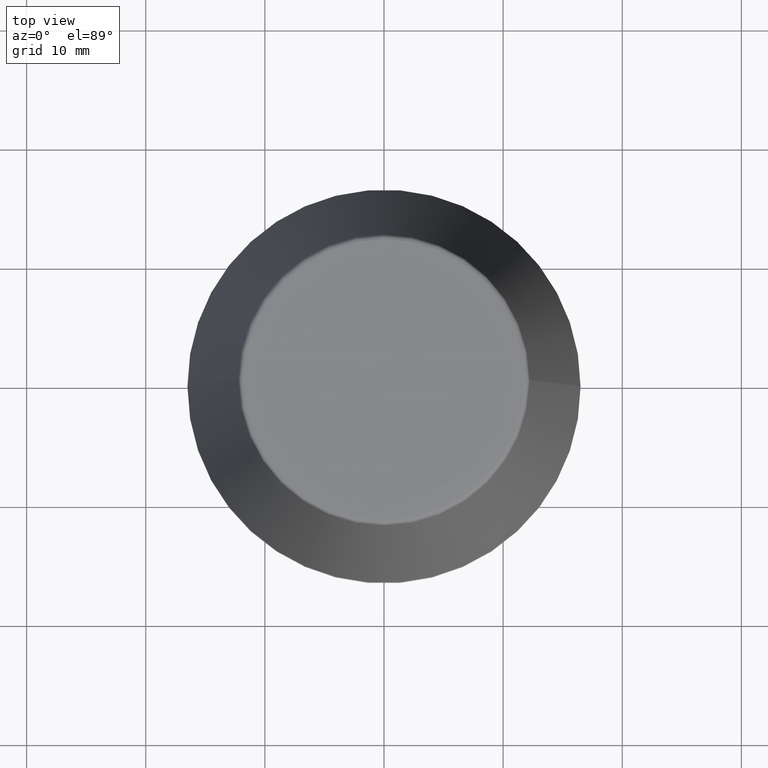
[diagram: clean part render]
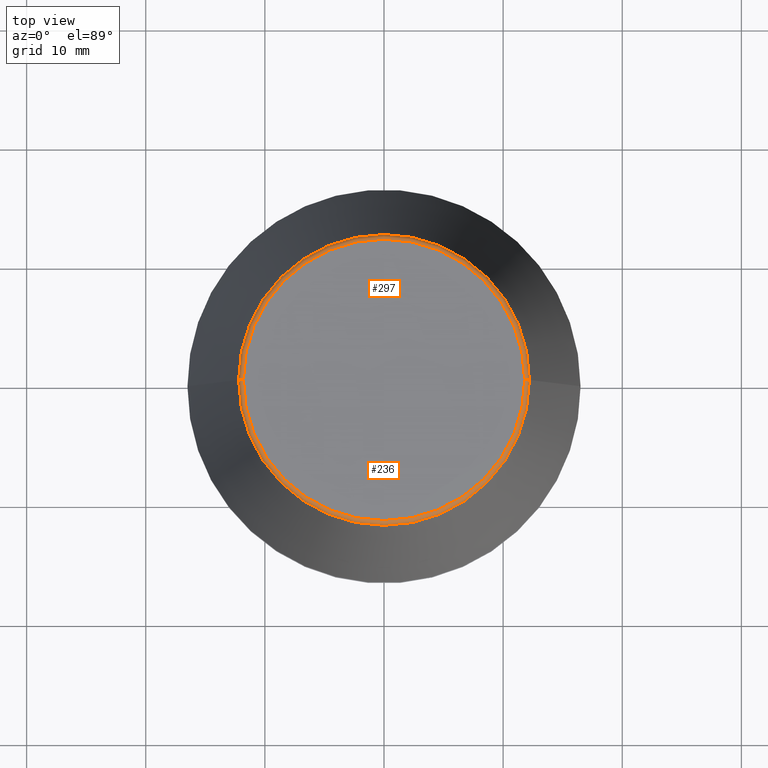
[diagram: same view with one multi-face feature highlighted, each face labeled with its STEP entity id]
A machine part, top view. The highlighted faces form ONE feature: a constant-radius fillet chain: 2 tangent blend faces with common blend radius 0.4 mm. The faces share edges in the B-rep.
Their STEP definitions:
[1] entity #236 (Torus):
#17 = DIRECTION ( 'NONE',  ( -0.0000000000000000000, -0.0000000000000000000, 1.000000000000000000 ) ) ;
#34 = ORIENTED_EDGE ( 'NONE', *, *, #208, .F. ) ;
#37 = EDGE_CURVE ( 'NONE', #300, #198, #362, .T. ) ;
#45 = VERTEX_POINT ( 'NONE', #330 ) ;
#47 = DIRECTION ( 'NONE',  ( -0.0000000000000000000, -0.0000000000000000000, 1.000000000000000000 ) ) ;
#62 = CIRCLE ( 'NONE', #287, 11.80989888411031400 ) ;
#72 = DIRECTION ( 'NONE',  ( 0.0000000000000000000, -1.000000000000000000, 0.0000000000000000000 ) ) ;
#73 = ORIENTED_EDGE ( 'NONE', *, *, #37, .T. ) ;
#77 = DIRECTION ( 'NONE',  ( 1.000000000000000000, 0.0000000000000000000, 0.0000000000000000000 ) ) ;
#90 = CARTESIAN_POINT ( 'NONE',  ( 11.80989888411031400, 0.0000000000000000000, 40.00000000000000700 ) ) ;
#106 = ORIENTED_EDGE ( 'NONE', *, *, #170, .F. ) ;
#122 = DIRECTION ( 'NONE',  ( 0.0000000000000000000, 0.0000000000000000000, -1.000000000000000000 ) ) ;
#129 = FACE_OUTER_BOUND ( 'NONE', #272, .T. ) ;
#130 = CARTESIAN_POINT ( 'NONE',  ( 0.0000000000000000000, 0.0000000000000000000, 40.00000000000000700 ) ) ;
#155 = AXIS2_PLACEMENT_3D ( 'NONE', #366, #72, #122 ) ;
#159 = DIRECTION ( 'NONE',  ( 1.000000000000000000, 0.0000000000000000000, 0.0000000000000000000 ) ) ;
#170 = EDGE_CURVE ( 'NONE', #45, #259, #274, .T. ) ;
#198 = VERTEX_POINT ( 'NONE', #90 ) ;
#202 = TOROIDAL_SURFACE ( 'NONE', #254, 11.80989888411031400, 0.4000000000000026900 ) ;
#208 = EDGE_CURVE ( 'NONE', #259, #198, #62, .T. ) ;
#210 = ORIENTED_EDGE ( 'NONE', *, *, #220, .T. ) ;
#220 = EDGE_CURVE ( 'NONE', #45, #300, #359, .T. ) ;
#224 = CARTESIAN_POINT ( 'NONE',  ( 0.0000000000000000000, 0.0000000000000000000, 39.65566924038402900 ) ) ;
#236 = ADVANCED_FACE ( 'NONE', ( #129 ), #202, .T. ) ;
#250 = DIRECTION ( 'NONE',  ( -1.000000000000000000, 1.224646799147352500E-016, 0.0000000000000000000 ) ) ;
#253 = DIRECTION ( 'NONE',  ( 1.000000000000000000, 0.0000000000000000000, 0.0000000000000000000 ) ) ;
#254 = AXIS2_PLACEMENT_3D ( 'NONE', #375, #17, #77 ) ;
#259 = VERTEX_POINT ( 'NONE', #290 ) ;
#268 = AXIS2_PLACEMENT_3D ( 'NONE', #224, #47, #253 ) ;
#272 = EDGE_LOOP ( 'NONE', ( #106, #210, #73, #34 ) ) ;
#274 = CIRCLE ( 'NONE', #312, 0.4000000000000028000 ) ;
#287 = AXIS2_PLACEMENT_3D ( 'NONE', #130, #336, #159 ) ;
#290 = CARTESIAN_POINT ( 'NONE',  ( -11.80989888411031400, 1.470550059081603400E-015, 40.00000000000000700 ) ) ;
#300 = VERTEX_POINT ( 'NONE', #321 ) ;
#312 = AXIS2_PLACEMENT_3D ( 'NONE', #334, #318, #250 ) ;
#318 = DIRECTION ( 'NONE',  ( 1.224646799147353200E-016, 1.000000000000000000, 0.0000000000000000000 ) ) ;
#321 = CARTESIAN_POINT ( 'NONE',  ( 12.20600611160694300, 1.757755848304969800E-015, 39.65566924038402900 ) ) ;
#330 = CARTESIAN_POINT ( 'NONE',  ( -12.20600611160694300, 0.0000000000000000000, 39.65566924038402900 ) ) ;
#334 = CARTESIAN_POINT ( 'NONE',  ( -11.80989888411031400, 1.446295486667959300E-015, 39.60000000000000100 ) ) ;
#336 = DIRECTION ( 'NONE',  ( -0.0000000000000000000, -0.0000000000000000000, 1.000000000000000000 ) ) ;
#359 = CIRCLE ( 'NONE', #268, 12.20600611160694300 ) ;
#362 = CIRCLE ( 'NONE', #155, 0.4000000000000045200 ) ;
#366 = CARTESIAN_POINT ( 'NONE',  ( 11.80989888411031400, 0.0000000000000000000, 39.60000000000000100 ) ) ;
#375 = CARTESIAN_POINT ( 'NONE',  ( 0.0000000000000000000, 0.0000000000000000000, 39.60000000000000100 ) ) ;
[2] entity #297 (Torus):
#20 = DIRECTION ( 'NONE',  ( -0.0000000000000000000, -0.0000000000000000000, 1.000000000000000000 ) ) ;
#37 = EDGE_CURVE ( 'NONE', #300, #198, #362, .T. ) ;
#45 = VERTEX_POINT ( 'NONE', #330 ) ;
#51 = DIRECTION ( 'NONE',  ( 1.000000000000000000, 0.0000000000000000000, 0.0000000000000000000 ) ) ;
#72 = DIRECTION ( 'NONE',  ( 0.0000000000000000000, -1.000000000000000000, 0.0000000000000000000 ) ) ;
#90 = CARTESIAN_POINT ( 'NONE',  ( 11.80989888411031400, 0.0000000000000000000, 40.00000000000000700 ) ) ;
#91 = TOROIDAL_SURFACE ( 'NONE', #237, 11.80989888411031400, 0.4000000000000026900 ) ;
#122 = DIRECTION ( 'NONE',  ( 0.0000000000000000000, 0.0000000000000000000, -1.000000000000000000 ) ) ;
#127 = ORIENTED_EDGE ( 'NONE', *, *, #37, .F. ) ;
#146 = EDGE_LOOP ( 'NONE', ( #314, #377, #188, #127 ) ) ;
#151 = DIRECTION ( 'NONE',  ( 1.000000000000000000, 0.0000000000000000000, 0.0000000000000000000 ) ) ;
#155 = AXIS2_PLACEMENT_3D ( 'NONE', #366, #72, #122 ) ;
#160 = CARTESIAN_POINT ( 'NONE',  ( 0.0000000000000000000, 0.0000000000000000000, 39.65566924038402900 ) ) ;
#170 = EDGE_CURVE ( 'NONE', #45, #259, #274, .T. ) ;
#176 = EDGE_CURVE ( 'NONE', #198, #259, #291, .T. ) ;
#181 = FACE_OUTER_BOUND ( 'NONE', #146, .T. ) ;
#188 = ORIENTED_EDGE ( 'NONE', *, *, #176, .F. ) ;
#190 = DIRECTION ( 'NONE',  ( 1.000000000000000000, 0.0000000000000000000, 0.0000000000000000000 ) ) ;
#191 = CARTESIAN_POINT ( 'NONE',  ( 0.0000000000000000000, 0.0000000000000000000, 39.60000000000000100 ) ) ;
#198 = VERTEX_POINT ( 'NONE', #90 ) ;
#215 = DIRECTION ( 'NONE',  ( -0.0000000000000000000, -0.0000000000000000000, 1.000000000000000000 ) ) ;
#237 = AXIS2_PLACEMENT_3D ( 'NONE', #191, #20, #51 ) ;
#250 = DIRECTION ( 'NONE',  ( -1.000000000000000000, 1.224646799147352500E-016, 0.0000000000000000000 ) ) ;
#255 = EDGE_CURVE ( 'NONE', #300, #45, #288, .T. ) ;
#259 = VERTEX_POINT ( 'NONE', #290 ) ;
#263 = AXIS2_PLACEMENT_3D ( 'NONE', #160, #376, #190 ) ;
#274 = CIRCLE ( 'NONE', #312, 0.4000000000000028000 ) ;
#277 = CARTESIAN_POINT ( 'NONE',  ( 0.0000000000000000000, 0.0000000000000000000, 40.00000000000000700 ) ) ;
#288 = CIRCLE ( 'NONE', #263, 12.20600611160694300 ) ;
#290 = CARTESIAN_POINT ( 'NONE',  ( -11.80989888411031400, 1.470550059081603400E-015, 40.00000000000000700 ) ) ;
#291 = CIRCLE ( 'NONE', #308, 11.80989888411031400 ) ;
#297 = ADVANCED_FACE ( 'NONE', ( #181 ), #91, .T. ) ;
#300 = VERTEX_POINT ( 'NONE', #321 ) ;
#308 = AXIS2_PLACEMENT_3D ( 'NONE', #277, #215, #151 ) ;
#312 = AXIS2_PLACEMENT_3D ( 'NONE', #334, #318, #250 ) ;
#314 = ORIENTED_EDGE ( 'NONE', *, *, #255, .T. ) ;
#318 = DIRECTION ( 'NONE',  ( 1.224646799147353200E-016, 1.000000000000000000, 0.0000000000000000000 ) ) ;
#321 = CARTESIAN_POINT ( 'NONE',  ( 12.20600611160694300, 1.757755848304969800E-015, 39.65566924038402900 ) ) ;
#330 = CARTESIAN_POINT ( 'NONE',  ( -12.20600611160694300, 0.0000000000000000000, 39.65566924038402900 ) ) ;
#334 = CARTESIAN_POINT ( 'NONE',  ( -11.80989888411031400, 1.446295486667959300E-015, 39.60000000000000100 ) ) ;
#362 = CIRCLE ( 'NONE', #155, 0.4000000000000045200 ) ;
#366 = CARTESIAN_POINT ( 'NONE',  ( 11.80989888411031400, 0.0000000000000000000, 39.60000000000000100 ) ) ;
#376 = DIRECTION ( 'NONE',  ( -0.0000000000000000000, -0.0000000000000000000, 1.000000000000000000 ) ) ;
#377 = ORIENTED_EDGE ( 'NONE', *, *, #170, .T. ) ;